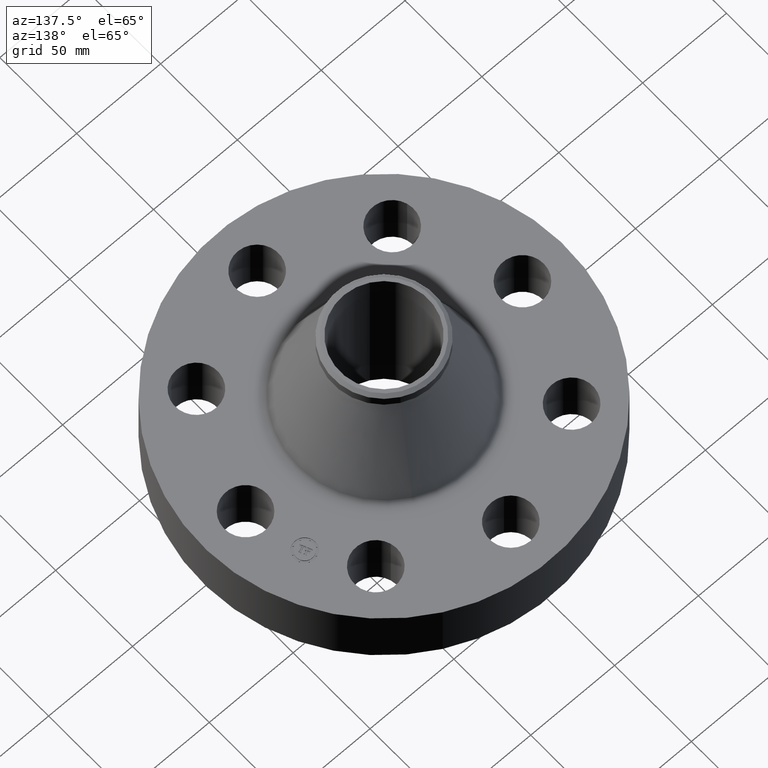
[diagram: clean part render]
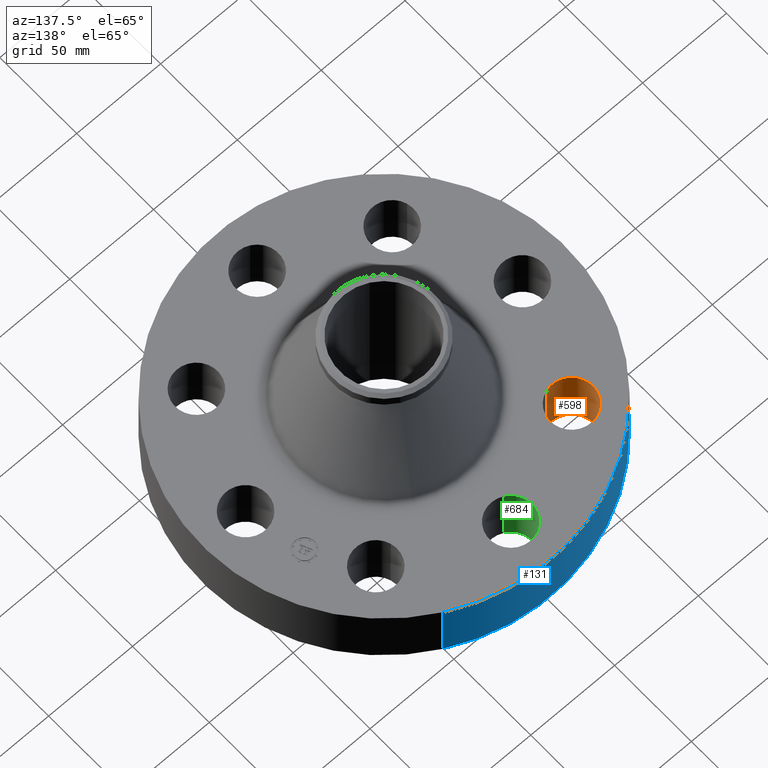
[diagram: same view with three faces highlighted in distinct colors, each labeled with its STEP entity id]
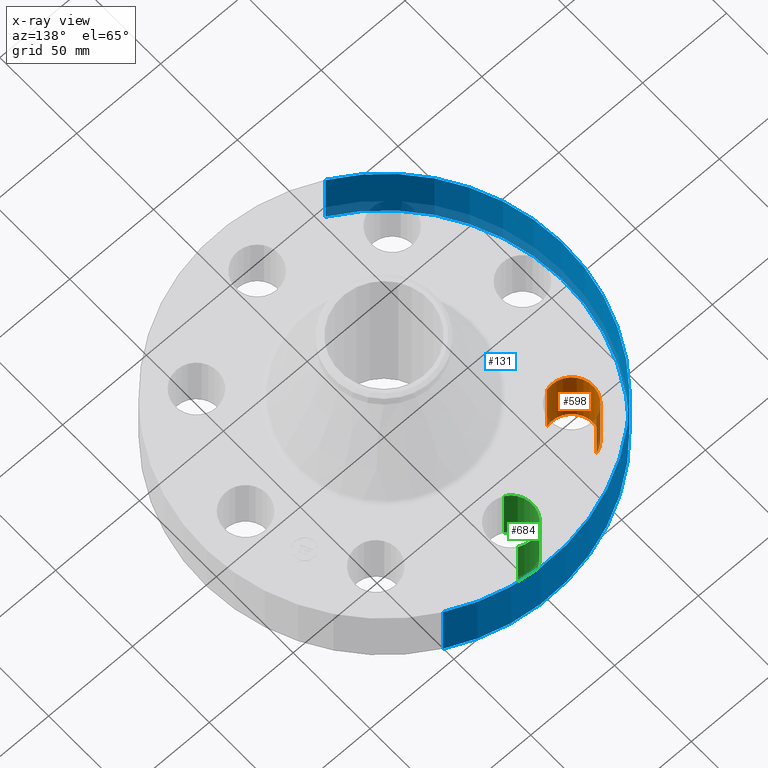
[diagram: x-ray of the same camera — body ghosted, the three highlighted faces saturated]
A machine part, auxiliary view with three faces highlighted in distinct colors.
The next image is the same camera in x-ray (body ghosted, the three faces saturated) — at least one of them is partly hidden behind the body in this view.
Their STEP definitions:

[orange] entity #598 — the highlighted cylindrical surface (edge-blend (fillet) strip) has radius 12.7 mm, axis along (0, 0, -1).
#515=AXIS2_PLACEMENT_3D('Circle Axis2P3D',#513,#514,$) ;
#571=AXIS2_PLACEMENT_3D('Cylinder Axis2P3D',#568,#569,#570) ;
#589=AXIS2_PLACEMENT_3D('Circle Axis2P3D',#587,#588,$) ;
#513=CARTESIAN_POINT('Axis2P3D Location',(-2.29809703887,2.29809703887,0.)) ;
#517=CARTESIAN_POINT('Vertex',(-2.15732727329,1.81832222387,0.)) ;
#519=CARTESIAN_POINT('Vertex',(-2.43886680444,2.77787185386,0.)) ;
#568=CARTESIAN_POINT('Axis2P3D Location',(-2.29809703887,2.29809703887,1.49606299213)) ;
#573=CARTESIAN_POINT('Line Origine',(-2.15732727329,1.81832222387,0.750000000003)) ;
#577=CARTESIAN_POINT('Vertex',(-2.15732727329,1.81832222387,1.50000000001)) ;
#580=CARTESIAN_POINT('Line Origine',(-2.43886680444,2.77787185386,0.750000000003)) ;
#584=CARTESIAN_POINT('Vertex',(-2.43886680444,2.77787185386,1.50000000001)) ;
#587=CARTESIAN_POINT('Axis2P3D Location',(-2.29809703887,2.29809703887,1.50000000001)) ;
#514=DIRECTION('Axis2P3D Direction',(0.,0.,-0.0393700787402)) ;
#569=DIRECTION('Axis2P3D Direction',(0.,0.,-0.0393700787402)) ;
#570=DIRECTION('Axis2P3D XDirection',(-0.0110842335096,0.0377775444876,0.)) ;
#574=DIRECTION('Vector Direction',(0.,0.,-0.0393700787402)) ;
#581=DIRECTION('Vector Direction',(0.,0.,-0.0393700787402)) ;
#588=DIRECTION('Axis2P3D Direction',(0.,0.,-0.0393700787402)) ;
#575=VECTOR('Line Direction',#574,0.0393700787402) ;
#582=VECTOR('Line Direction',#581,0.0393700787402) ;
#593=ORIENTED_EDGE('',*,*,#579,.F.) ;
#594=ORIENTED_EDGE('',*,*,#521,.T.) ;
#595=ORIENTED_EDGE('',*,*,#586,.T.) ;
#596=ORIENTED_EDGE('',*,*,#591,.F.) ;
#598=ADVANCED_FACE('PartBody',(#597),#572,.F.) ;
#516=CIRCLE('generated circle',#515,0.500000000002) ;
#590=CIRCLE('generated circle',#589,0.500000000002) ;
#572=CYLINDRICAL_SURFACE('generated cylinder',#571,0.500000000002) ;
#521=EDGE_CURVE('',#518,#520,#516,.T.) ;
#579=EDGE_CURVE('',#518,#578,#576,.F.) ;
#586=EDGE_CURVE('',#520,#585,#583,.F.) ;
#591=EDGE_CURVE('',#578,#585,#590,.T.) ;
#592=EDGE_LOOP('',(#593,#594,#595,#596)) ;
#597=FACE_OUTER_BOUND('',#592,.T.) ;
#576=LINE('Line',#573,#575) ;
#583=LINE('Line',#580,#582) ;
#518=VERTEX_POINT('',#517) ;
#520=VERTEX_POINT('',#519) ;
#578=VERTEX_POINT('',#577) ;
#585=VERTEX_POINT('',#584) ;

[blue] entity #131 — the highlighted cylindrical surface (partial cylindrical patch) has radius 107.95 mm, axis along (0, 0, -1).
#95=AXIS2_PLACEMENT_3D('Cylinder Axis2P3D',#92,#93,#94) ;
#99=AXIS2_PLACEMENT_3D('Circle Axis2P3D',#97,#98,$) ;
#115=AXIS2_PLACEMENT_3D('Circle Axis2P3D',#113,#114,$) ;
#92=CARTESIAN_POINT('Axis2P3D Location',(0.,0.,2.00000000001)) ;
#97=CARTESIAN_POINT('Axis2P3D Location',(0.,0.,2.79741234551E-016)) ;
#101=CARTESIAN_POINT('Vertex',(-2.03755853908,-3.72972588805,5.59482469102E-016)) ;
#103=CARTESIAN_POINT('Vertex',(2.03755853908,3.72972588805,5.59482469102E-016)) ;
#106=CARTESIAN_POINT('Line Origine',(-2.03755853908,-3.72972588805,0.750000000003)) ;
#110=CARTESIAN_POINT('Vertex',(-2.03755853908,-3.72972588805,1.50000000001)) ;
#113=CARTESIAN_POINT('Axis2P3D Location',(0.,0.,1.50000000001)) ;
#117=CARTESIAN_POINT('Vertex',(2.03755853908,3.72972588805,1.50000000001)) ;
#120=CARTESIAN_POINT('Line Origine',(2.03755853908,3.72972588805,0.750000000003)) ;
#93=DIRECTION('Axis2P3D Direction',(0.,0.,-0.0393700787402)) ;
#94=DIRECTION('Axis2P3D XDirection',(0.0188750212049,0.0345504945626,0.)) ;
#98=DIRECTION('Axis2P3D Direction',(0.,0.,-0.0393700787402)) ;
#107=DIRECTION('Vector Direction',(0.,0.,-0.0393700787402)) ;
#114=DIRECTION('Axis2P3D Direction',(0.,0.,-0.0393700787402)) ;
#121=DIRECTION('Vector Direction',(0.,0.,-0.0393700787402)) ;
#108=VECTOR('Line Direction',#107,0.0393700787402) ;
#122=VECTOR('Line Direction',#121,0.0393700787402) ;
#126=ORIENTED_EDGE('',*,*,#105,.F.) ;
#127=ORIENTED_EDGE('',*,*,#112,.T.) ;
#128=ORIENTED_EDGE('',*,*,#119,.T.) ;
#129=ORIENTED_EDGE('',*,*,#124,.F.) ;
#131=ADVANCED_FACE('PartBody',(#130),#96,.T.) ;
#100=CIRCLE('generated circle',#99,4.25000000002) ;
#116=CIRCLE('generated circle',#115,4.25000000002) ;
#96=CYLINDRICAL_SURFACE('generated cylinder',#95,4.25000000002) ;
#105=EDGE_CURVE('',#102,#104,#100,.T.) ;
#112=EDGE_CURVE('',#102,#111,#109,.F.) ;
#119=EDGE_CURVE('',#111,#118,#116,.T.) ;
#124=EDGE_CURVE('',#104,#118,#123,.F.) ;
#125=EDGE_LOOP('',(#126,#127,#128,#129)) ;
#130=FACE_OUTER_BOUND('',#125,.T.) ;
#109=LINE('Line',#106,#108) ;
#123=LINE('Line',#120,#122) ;
#102=VERTEX_POINT('',#101) ;
#104=VERTEX_POINT('',#103) ;
#111=VERTEX_POINT('',#110) ;
#118=VERTEX_POINT('',#117) ;

[green] entity #684 — the highlighted cylindrical surface (edge-blend (fillet) strip) has radius 12.7 mm, axis along (0, 0, -1).
#533=AXIS2_PLACEMENT_3D('Circle Axis2P3D',#531,#532,$) ;
#657=AXIS2_PLACEMENT_3D('Cylinder Axis2P3D',#654,#655,#656) ;
#675=AXIS2_PLACEMENT_3D('Circle Axis2P3D',#673,#674,$) ;
#531=CARTESIAN_POINT('Axis2P3D Location',(-5.59482469102E-016,3.25000000001,0.)) ;
#535=CARTESIAN_POINT('Vertex',(-0.239712769303,2.81120871907,0.)) ;
#537=CARTESIAN_POINT('Vertex',(0.239712769303,3.68879128096,0.)) ;
#654=CARTESIAN_POINT('Axis2P3D Location',(-5.97015314587E-016,3.25000000001,1.49606299213)) ;
#659=CARTESIAN_POINT('Line Origine',(-0.239712769303,2.81120871907,0.750000000003)) ;
#663=CARTESIAN_POINT('Vertex',(-0.239712769303,2.81120871907,1.50000000001)) ;
#666=CARTESIAN_POINT('Line Origine',(0.239712769303,3.68879128096,0.750000000003)) ;
#670=CARTESIAN_POINT('Vertex',(0.239712769303,3.68879128096,1.50000000001)) ;
#673=CARTESIAN_POINT('Axis2P3D Location',(-5.97015314587E-016,3.25000000001,1.50000000001)) ;
#532=DIRECTION('Axis2P3D Direction',(0.,0.,-0.0393700787402)) ;
#655=DIRECTION('Axis2P3D Direction',(0.,0.,-0.0393700787402)) ;
#656=DIRECTION('Axis2P3D XDirection',(0.0188750212049,0.0345504945626,0.)) ;
#660=DIRECTION('Vector Direction',(0.,0.,-0.0393700787402)) ;
#667=DIRECTION('Vector Direction',(0.,0.,-0.0393700787402)) ;
#674=DIRECTION('Axis2P3D Direction',(0.,0.,-0.0393700787402)) ;
#661=VECTOR('Line Direction',#660,0.0393700787402) ;
#668=VECTOR('Line Direction',#667,0.0393700787402) ;
#679=ORIENTED_EDGE('',*,*,#665,.F.) ;
#680=ORIENTED_EDGE('',*,*,#539,.T.) ;
#681=ORIENTED_EDGE('',*,*,#672,.T.) ;
#682=ORIENTED_EDGE('',*,*,#677,.F.) ;
#684=ADVANCED_FACE('PartBody',(#683),#658,.F.) ;
#534=CIRCLE('generated circle',#533,0.500000000002) ;
#676=CIRCLE('generated circle',#675,0.500000000002) ;
#658=CYLINDRICAL_SURFACE('generated cylinder',#657,0.500000000002) ;
#539=EDGE_CURVE('',#536,#538,#534,.T.) ;
#665=EDGE_CURVE('',#536,#664,#662,.F.) ;
#672=EDGE_CURVE('',#538,#671,#669,.F.) ;
#677=EDGE_CURVE('',#664,#671,#676,.T.) ;
#678=EDGE_LOOP('',(#679,#680,#681,#682)) ;
#683=FACE_OUTER_BOUND('',#678,.T.) ;
#662=LINE('Line',#659,#661) ;
#669=LINE('Line',#666,#668) ;
#536=VERTEX_POINT('',#535) ;
#538=VERTEX_POINT('',#537) ;
#664=VERTEX_POINT('',#663) ;
#671=VERTEX_POINT('',#670) ;